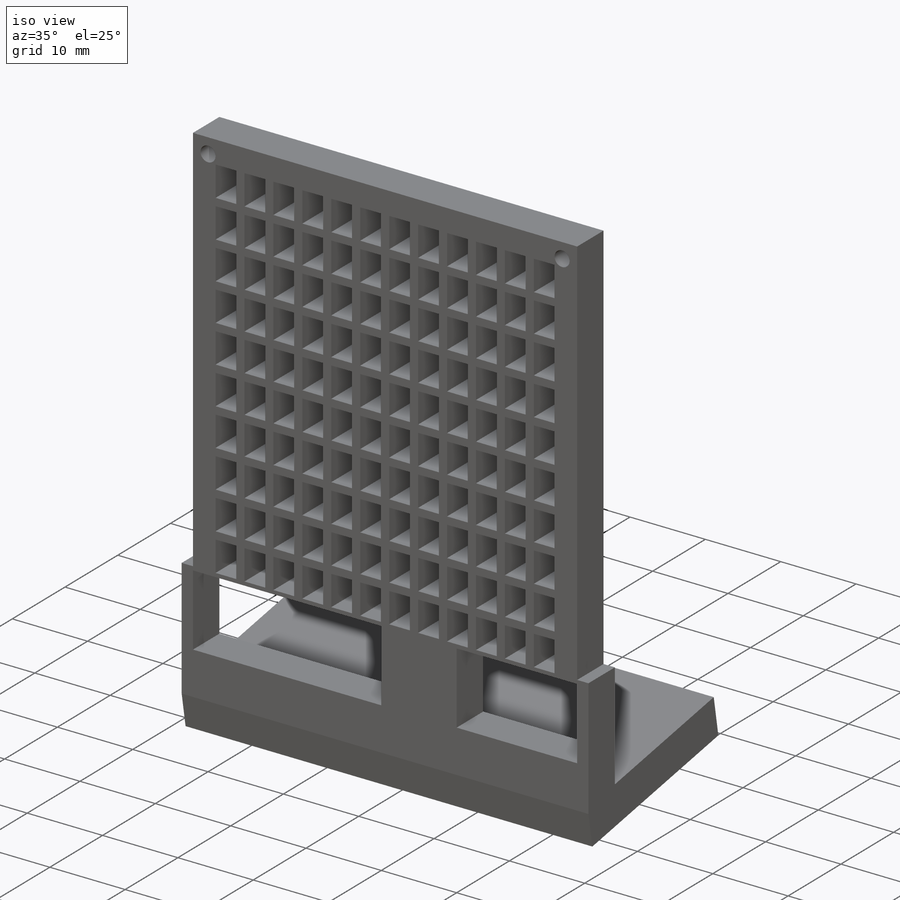
[diagram: iso view]
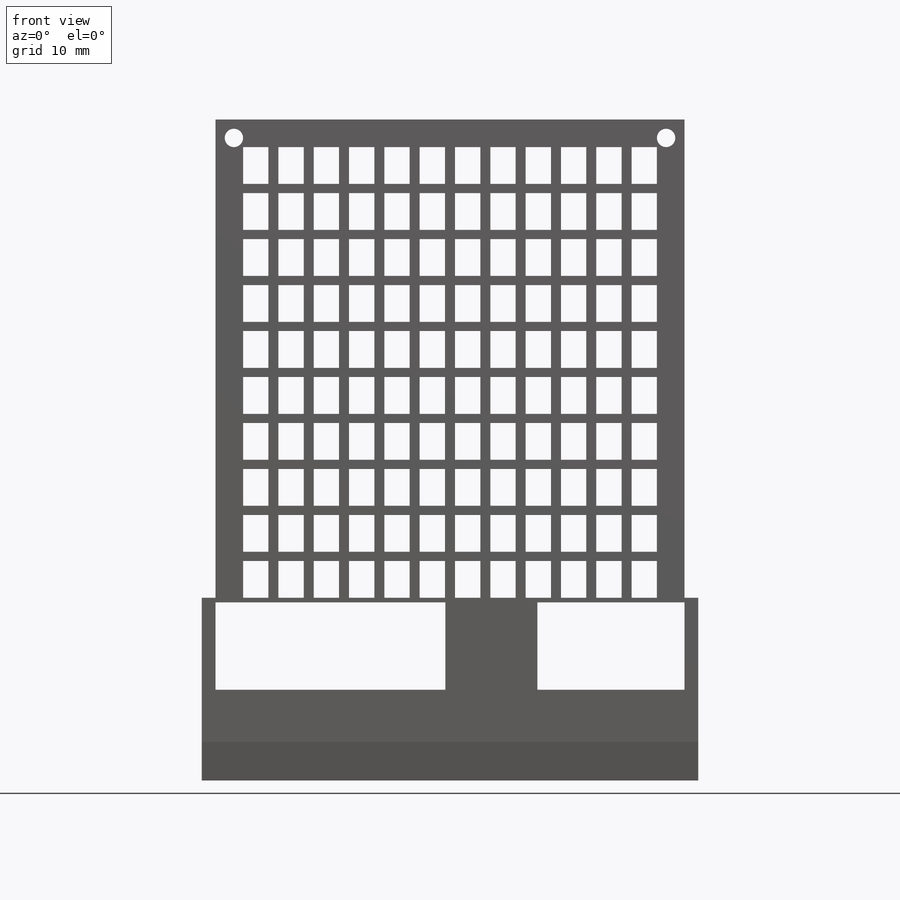
[diagram: front view]
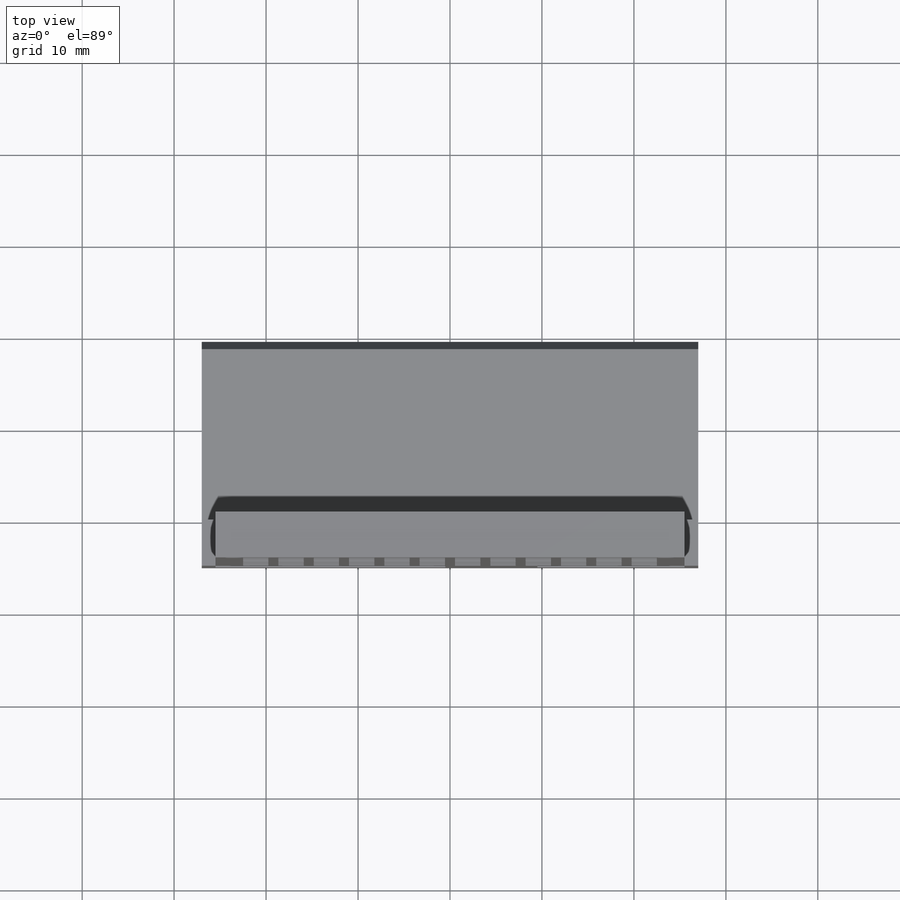
[diagram: top view]
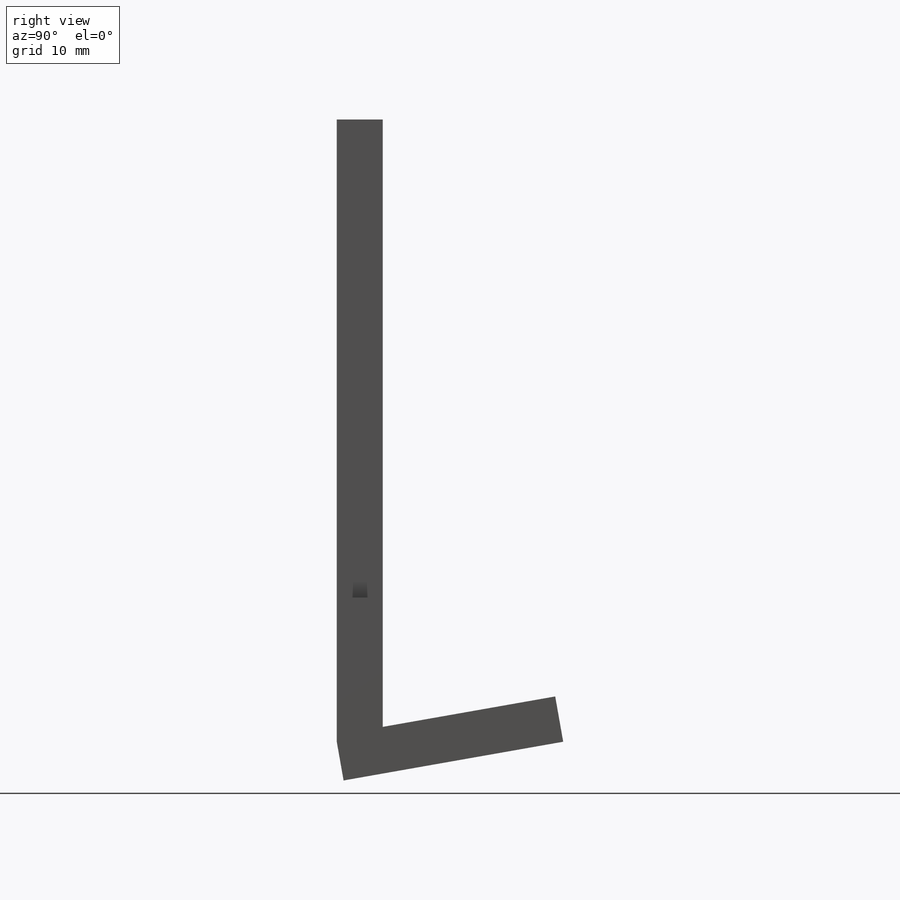
[diagram: right view]
SOLIDWORKS PART (.sldprt)
format: sldprt  version: not decoded by parser v0  size: 974,336 bytes
history: native  units: mm
features: sketch x5, cut_extrude x3, extrude x2, material x1 (+13 scaffold rows collapsed)
feature tree (24):
  scaffold x13  (default folders/planes/origin — collapsed)
  material  "Material <not specified>"
  sketch  "Sketch1"  dims[c1.D1=51.0mm c1.D2=62.0mm c1.D3=3.0mm c1.D4=3.0mm c1.D5=3.0mm c1.D6=9.0mm c2.D3=4.0mm c2.D4=2.75mm c2.D6=4.0mm c2.D7=1.0mm c2.D30=2.75mm c2.D21=10.0mm c2.D22=5.0mm c2.D23=20.0mm c2.D24=1.5mm c2.D25=1.5mm c2.D20=10.0 c3.D6=2.0 c3.D7=2.0 c3.D8=2.0 c3.D9=2.0 c3.D10=2.0 c3.D11=2.0 c3.D12=2.0 c3.D13=2.0 c3.D14=2.0 c3.D15=2.0 c3.D16=9.0 c3.D17=6.0 c3.D18=6.0]
  extrude  "Boss-Extrude1"  Depth=5mm
  sketch  "Sketch4"  dims[c1.D1=9.5mm c1.D2=9.5mm c1.D3=0.5mm c1.D4=0.5mm c1.D5=1.5mm c1.D6=1.5mm c1.D7=10.0mm c1.D8=25.0mm c2.D4=0.5mm c2.D9=8.5mm c3.D4=0.5mm c3.D3=0.5mm]
  cut_extrude  "Cut-Extrude3"  Depth=10mm
  sketch  "Sketch5"  dims[c1.D1=10.0deg c2.D1=5.0mm]
  extrude  "Boss-Extrude2"  Depth=54mm
  sketch  "Sketch6"  dims[D1=0.75mm]
  cut_extrude  "Cut-Extrude4"  Depth=54mm
  sketch  "Sketch7"  dims[D3=~1.953369mm D1=23.5mm D2=2.0mm]
  cut_extrude  "Cut-Extrude5"  Depth=10mm
decode coverage: 10 of 10 modeling features carry decoded parameters
note: ~ marks probable driven/reference dimensions
note: suppression state not decoded; provenance and decode notes live in map.json
